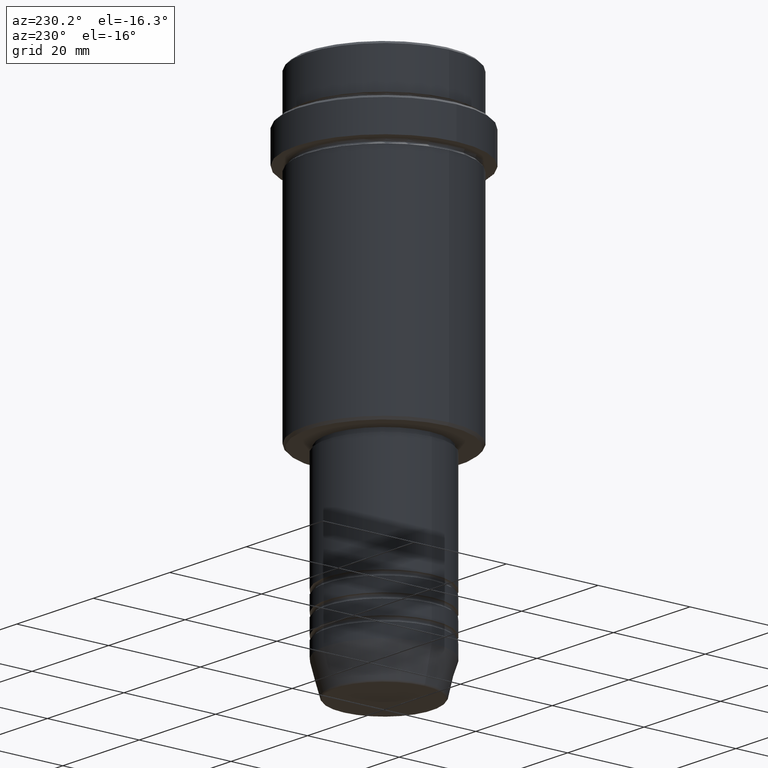
[diagram: clean part render]
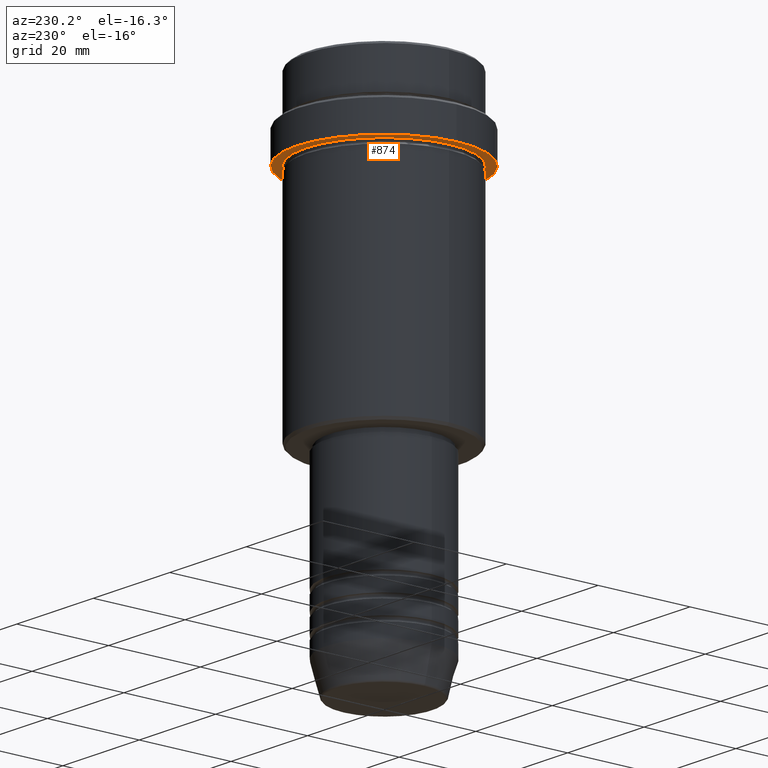
[diagram: same view with one face highlighted and labeled with its STEP entity id]
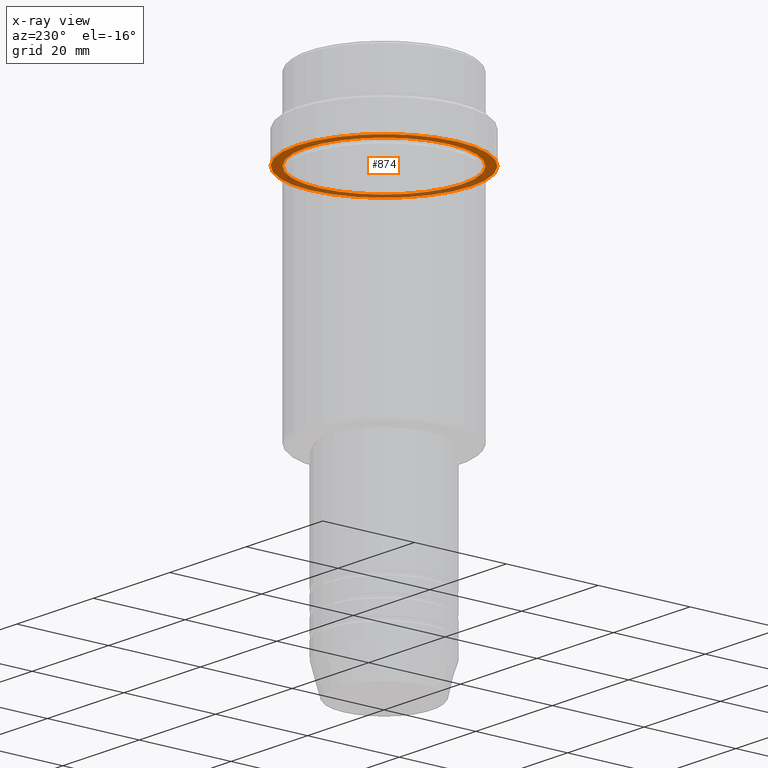
[diagram: x-ray of the same camera — body ghosted, the highlighted face saturated]
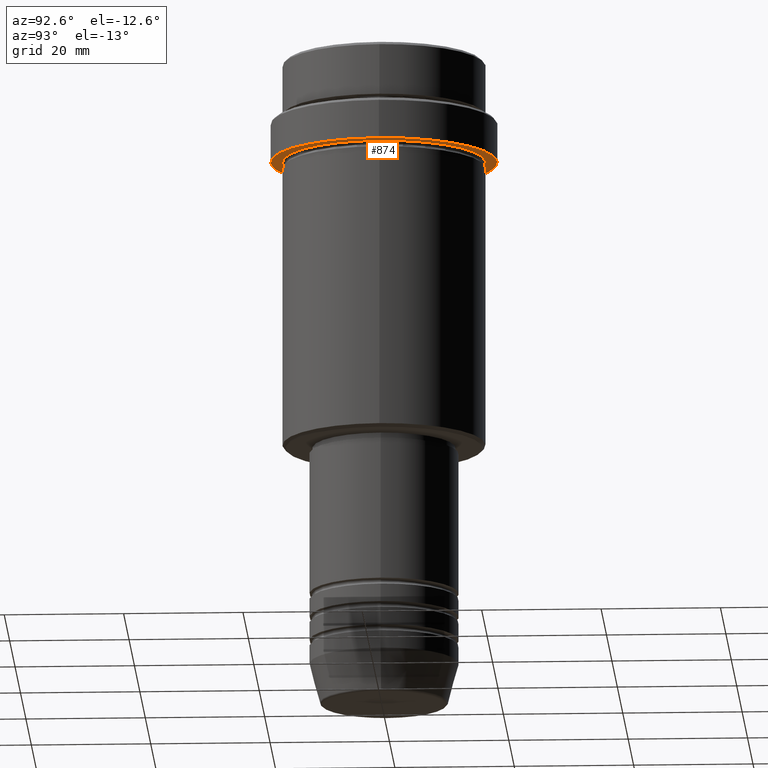
[diagram: same view with one face highlighted and labeled with its STEP entity id]
A machine part, auxiliary view. The second image highlights one B-rep face of the part: STEP entity #874.
The next image is the same camera in x-ray: the body ghosted, the highlighted face saturated — about 36% of this face is hidden behind the body in this view.
A second angle (auxiliary view) of the same face is appended — the face is thin or edge-on in the first view.
In plain terms, the highlighted planar face has unit normal (0, 0, -1).
Its self-contained STEP definition (entity closure, byte-faithful):
#42 = DIRECTION ( 'NONE',  ( 0.000000000000000000, 0.000000000000000000, -1.000000000000000000 ) ) ;
#64 = CARTESIAN_POINT ( 'NONE',  ( 16.99999999999998579, 2.081899558550499096E-15, -17.00000000000000000 ) ) ;
#74 = DIRECTION ( 'NONE',  ( -1.000000000000000000, 0.000000000000000000, -0.000000000000000000 ) ) ;
#107 = EDGE_CURVE ( 'NONE', #290, #320, #561, .T. ) ;
#190 = ORIENTED_EDGE ( 'NONE', *, *, #414, .F. ) ;
#226 = CARTESIAN_POINT ( 'NONE',  ( 18.99999999999999289, 0.000000000000000000, -17.00000000000000000 ) ) ;
#277 = CARTESIAN_POINT ( 'NONE',  ( 0.000000000000000000, 0.000000000000000000, -17.00000000000000000 ) ) ;
#290 = VERTEX_POINT ( 'NONE', #303 ) ;
#303 = CARTESIAN_POINT ( 'NONE',  ( -16.99999999999998579, 0.000000000000000000, -17.00000000000000000 ) ) ;
#317 = CIRCLE ( 'NONE', #1135, 18.99999999999999289 ) ;
#320 = VERTEX_POINT ( 'NONE', #64 ) ;
#329 = DIRECTION ( 'NONE',  ( 1.000000000000000000, 0.000000000000000000, 0.000000000000000000 ) ) ;
#396 = DIRECTION ( 'NONE',  ( -0.000000000000000000, -0.000000000000000000, 1.000000000000000000 ) ) ;
#414 = EDGE_CURVE ( 'NONE', #520, #456, #317, .T. ) ;
#436 = CARTESIAN_POINT ( 'NONE',  ( 0.000000000000000000, 0.000000000000000000, -17.00000000000000000 ) ) ;
#456 = VERTEX_POINT ( 'NONE', #796 ) ;
#488 = FACE_BOUND ( 'NONE', #524, .T. ) ;
#495 = FACE_OUTER_BOUND ( 'NONE', #1235, .T. ) ;
#517 = CIRCLE ( 'NONE', #730, 16.99999999999998579 ) ;
#520 = VERTEX_POINT ( 'NONE', #226 ) ;
#524 = EDGE_LOOP ( 'NONE', ( #1096, #642 ) ) ;
#561 = CIRCLE ( 'NONE', #898, 16.99999999999998579 ) ;
#593 = CIRCLE ( 'NONE', #946, 18.99999999999999289 ) ;
#635 = DIRECTION ( 'NONE',  ( -0.000000000000000000, -0.000000000000000000, 1.000000000000000000 ) ) ;
#642 = ORIENTED_EDGE ( 'NONE', *, *, #1403, .T. ) ;
#691 = DIRECTION ( 'NONE',  ( -0.000000000000000000, -0.000000000000000000, 1.000000000000000000 ) ) ;
#730 = AXIS2_PLACEMENT_3D ( 'NONE', #277, #396, #1273 ) ;
#748 = CARTESIAN_POINT ( 'NONE',  ( 0.000000000000000000, 0.000000000000000000, -17.00000000000000000 ) ) ;
#760 = ORIENTED_EDGE ( 'NONE', *, *, #780, .F. ) ;
#780 = EDGE_CURVE ( 'NONE', #456, #520, #593, .T. ) ;
#796 = CARTESIAN_POINT ( 'NONE',  ( -18.99999999999999289, 2.326828918379970182E-15, -17.00000000000000000 ) ) ;
#829 = PLANE ( 'NONE',  #1037 ) ;
#874 = ADVANCED_FACE ( 'NONE', ( #488, #495 ), #829, .T. ) ;
#898 = AXIS2_PLACEMENT_3D ( 'NONE', #928, #691, #1228 ) ;
#928 = CARTESIAN_POINT ( 'NONE',  ( 0.000000000000000000, 0.000000000000000000, -17.00000000000000000 ) ) ;
#946 = AXIS2_PLACEMENT_3D ( 'NONE', #436, #1318, #329 ) ;
#1022 = CARTESIAN_POINT ( 'NONE',  ( 0.000000000000000000, 18.99999999999999289, -17.00000000000000000 ) ) ;
#1037 = AXIS2_PLACEMENT_3D ( 'NONE', #1022, #42, #74 ) ;
#1096 = ORIENTED_EDGE ( 'NONE', *, *, #107, .T. ) ;
#1135 = AXIS2_PLACEMENT_3D ( 'NONE', #748, #635, #1201 ) ;
#1201 = DIRECTION ( 'NONE',  ( 1.000000000000000000, 0.000000000000000000, 0.000000000000000000 ) ) ;
#1228 = DIRECTION ( 'NONE',  ( -1.000000000000000000, 0.000000000000000000, 0.000000000000000000 ) ) ;
#1235 = EDGE_LOOP ( 'NONE', ( #190, #760 ) ) ;
#1273 = DIRECTION ( 'NONE',  ( -1.000000000000000000, 0.000000000000000000, 0.000000000000000000 ) ) ;
#1318 = DIRECTION ( 'NONE',  ( -0.000000000000000000, -0.000000000000000000, 1.000000000000000000 ) ) ;
#1403 = EDGE_CURVE ( 'NONE', #320, #290, #517, .T. ) ;